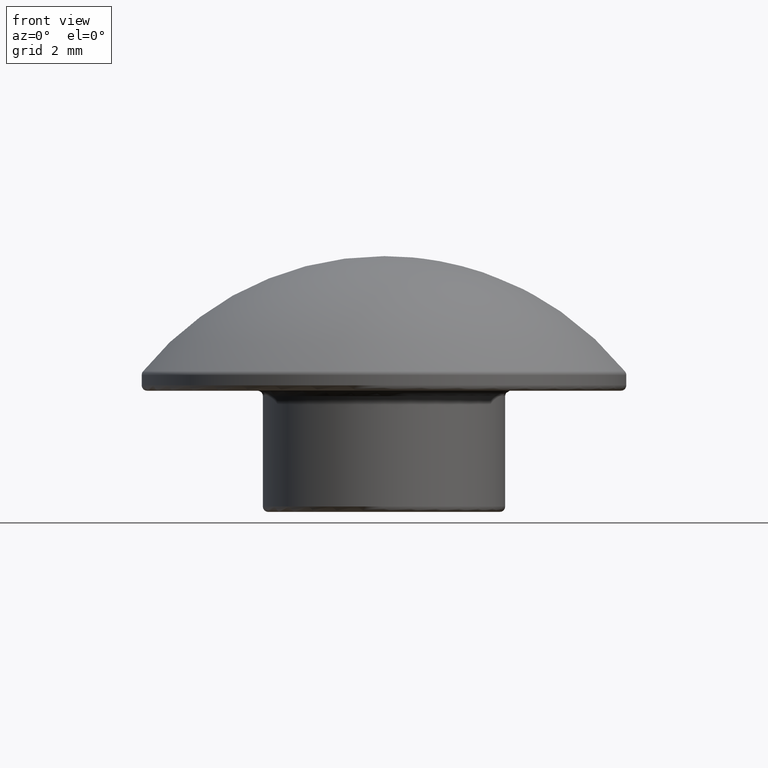
[diagram: clean part render]
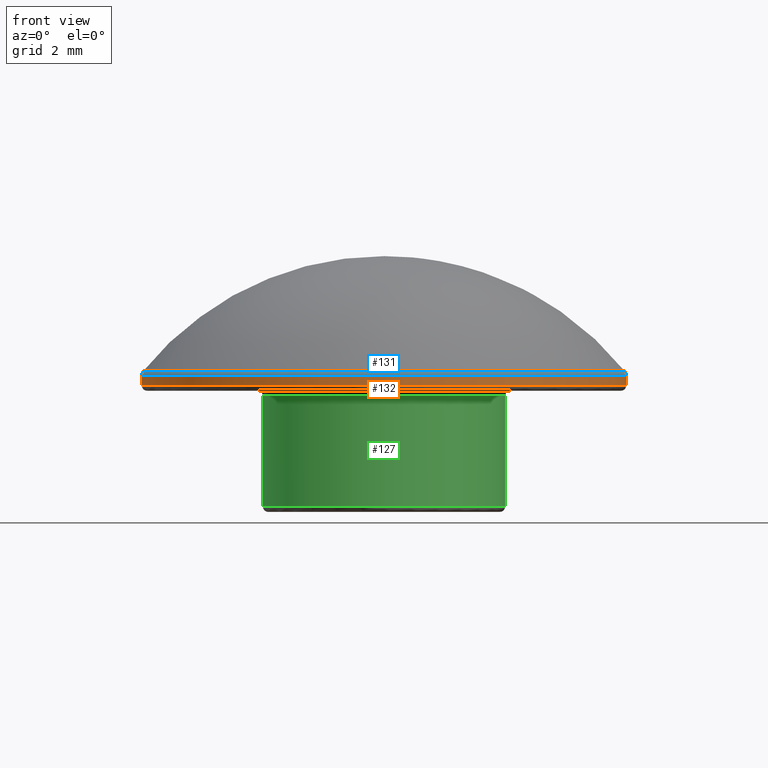
[diagram: same view with three faces highlighted in distinct colors, each labeled with its STEP entity id]
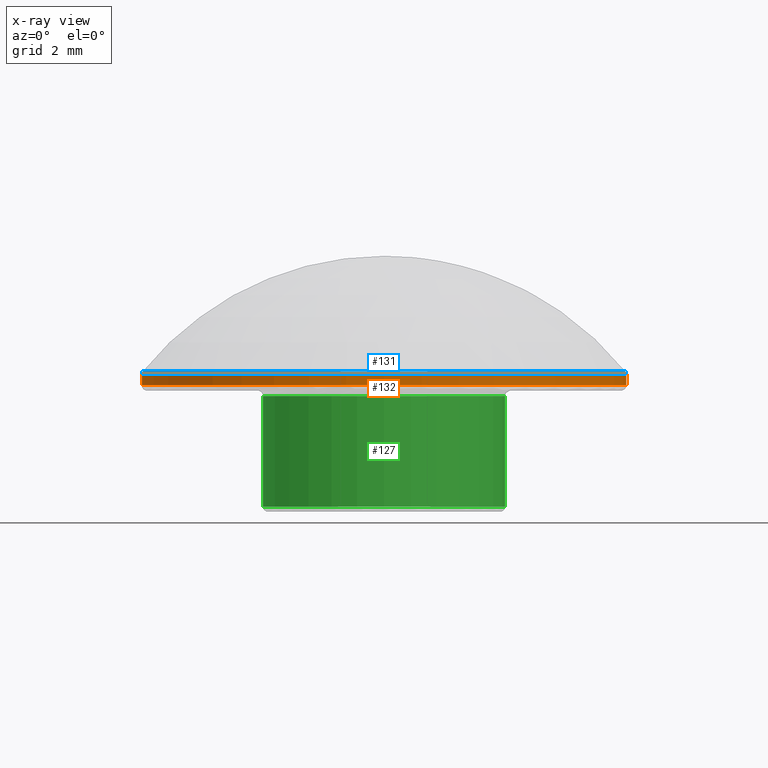
[diagram: x-ray of the same camera — body ghosted, the three highlighted faces saturated]
A machine part, front view with three faces highlighted in distinct colors.
The next image is the same camera in x-ray (body ghosted, the three faces saturated) — at least one of them is partly hidden behind the body in this view.
Their STEP definitions:

[orange] entity #132 — the highlighted cylindrical surface (bore or boss wall) has radius 8.9999 mm, axis along (0, 0, -1).
#21=CYLINDRICAL_SURFACE('',#154,8.99992883305196);
#29=FACE_BOUND('',#58,.T.);
#39=FACE_OUTER_BOUND('',#57,.T.);
#57=EDGE_LOOP('',(#112));
#58=EDGE_LOOP('',(#113));
#73=CIRCLE('',#152,8.99992883305196);
#75=CIRCLE('',#155,8.99992883305196);
#84=VERTEX_POINT('',#230);
#86=VERTEX_POINT('',#235);
#95=EDGE_CURVE('',#84,#84,#73,.T.);
#97=EDGE_CURVE('',#86,#86,#75,.T.);
#112=ORIENTED_EDGE('',*,*,#97,.F.);
#113=ORIENTED_EDGE('',*,*,#95,.F.);
#132=ADVANCED_FACE('',(#39,#29),#21,.T.);
#152=AXIS2_PLACEMENT_3D('',#231,#189,#190);
#154=AXIS2_PLACEMENT_3D('',#234,#193,#194);
#155=AXIS2_PLACEMENT_3D('',#236,#195,#196);
#189=DIRECTION('center_axis',(0.,0.,1.));
#190=DIRECTION('ref_axis',(1.,6.12323399573677E-17,0.));
#193=DIRECTION('center_axis',(0.,0.,-1.));
#194=DIRECTION('ref_axis',(1.,0.,0.));
#195=DIRECTION('center_axis',(0.,0.,-1.));
#196=DIRECTION('ref_axis',(1.,0.,0.));
#230=CARTESIAN_POINT('',(-8.99992883305196,-1.65326010569266E-15,7.08881178570999));
#231=CARTESIAN_POINT('Origin',(0.,0.,7.08881178570999));
#234=CARTESIAN_POINT('Origin',(0.,0.,7.159));
#235=CARTESIAN_POINT('',(-8.99992883305196,1.10217340379511E-15,6.7));
#236=CARTESIAN_POINT('Origin',(0.,0.,6.7));

[blue] entity #131 — the highlighted toroidal blend (fillet) surface has major radius 8.7999 mm and minor (blend) radius 0.2 mm.
#28=FACE_BOUND('',#56,.T.);
#38=FACE_OUTER_BOUND('',#55,.T.);
#55=EDGE_LOOP('',(#110));
#56=EDGE_LOOP('',(#111));
#73=CIRCLE('',#152,8.99992883305196);
#74=CIRCLE('',#153,8.95567978584934);
#84=VERTEX_POINT('',#230);
#85=VERTEX_POINT('',#232);
#95=EDGE_CURVE('',#84,#84,#73,.T.);
#96=EDGE_CURVE('',#85,#85,#74,.T.);
#110=ORIENTED_EDGE('',*,*,#95,.T.);
#111=ORIENTED_EDGE('',*,*,#96,.T.);
#124=TOROIDAL_SURFACE('',#151,8.79992883305196,0.2);
#131=ADVANCED_FACE('',(#38,#28),#124,.T.);
#151=AXIS2_PLACEMENT_3D('',#229,#187,#188);
#152=AXIS2_PLACEMENT_3D('',#231,#189,#190);
#153=AXIS2_PLACEMENT_3D('',#233,#191,#192);
#187=DIRECTION('center_axis',(0.,0.,1.));
#188=DIRECTION('ref_axis',(1.,0.,0.));
#189=DIRECTION('center_axis',(0.,0.,1.));
#190=DIRECTION('ref_axis',(1.,6.12323399573677E-17,0.));
#191=DIRECTION('center_axis',(0.,0.,-1.));
#192=DIRECTION('ref_axis',(1.,6.12323399573677E-17,0.));
#229=CARTESIAN_POINT('Origin',(0.,0.,7.08881178570999));
#230=CARTESIAN_POINT('',(-8.99992883305196,-1.65326010569266E-15,7.08881178570999));
#231=CARTESIAN_POINT('Origin',(0.,0.,7.08881178570999));
#232=CARTESIAN_POINT('',(-8.95567978584934,5.48377229196452E-16,7.21427748103229));
#233=CARTESIAN_POINT('Origin',(0.,0.,7.21427748103229));

[green] entity #127 — the highlighted cylindrical surface (bore or boss wall) has radius 4.5 mm, axis along (0, 0, -1).
#20=CYLINDRICAL_SURFACE('',#143,4.5);
#24=FACE_BOUND('',#48,.T.);
#34=FACE_OUTER_BOUND('',#47,.T.);
#47=EDGE_LOOP('',(#102));
#48=EDGE_LOOP('',(#103));
#67=CIRCLE('',#141,4.5);
#69=CIRCLE('',#144,4.5);
#78=VERTEX_POINT('',#213);
#80=VERTEX_POINT('',#218);
#89=EDGE_CURVE('',#78,#78,#67,.T.);
#91=EDGE_CURVE('',#80,#80,#69,.T.);
#102=ORIENTED_EDGE('',*,*,#91,.F.);
#103=ORIENTED_EDGE('',*,*,#89,.F.);
#127=ADVANCED_FACE('',(#34,#24),#20,.T.);
#141=AXIS2_PLACEMENT_3D('',#214,#167,#168);
#143=AXIS2_PLACEMENT_3D('',#217,#171,#172);
#144=AXIS2_PLACEMENT_3D('',#219,#173,#174);
#167=DIRECTION('center_axis',(0.,0.,1.));
#168=DIRECTION('ref_axis',(1.,0.,0.));
#171=DIRECTION('center_axis',(0.,0.,-1.));
#172=DIRECTION('ref_axis',(1.,0.,0.));
#173=DIRECTION('center_axis',(0.,0.,-1.));
#174=DIRECTION('ref_axis',(1.,0.,0.));
#213=CARTESIAN_POINT('',(-4.5,-5.51091059616309E-16,6.3));
#214=CARTESIAN_POINT('Origin',(0.,0.,6.3));
#217=CARTESIAN_POINT('Origin',(0.,0.,6.5));
#218=CARTESIAN_POINT('',(-4.5,5.51091059616309E-16,2.2));
#219=CARTESIAN_POINT('Origin',(0.,0.,2.2));